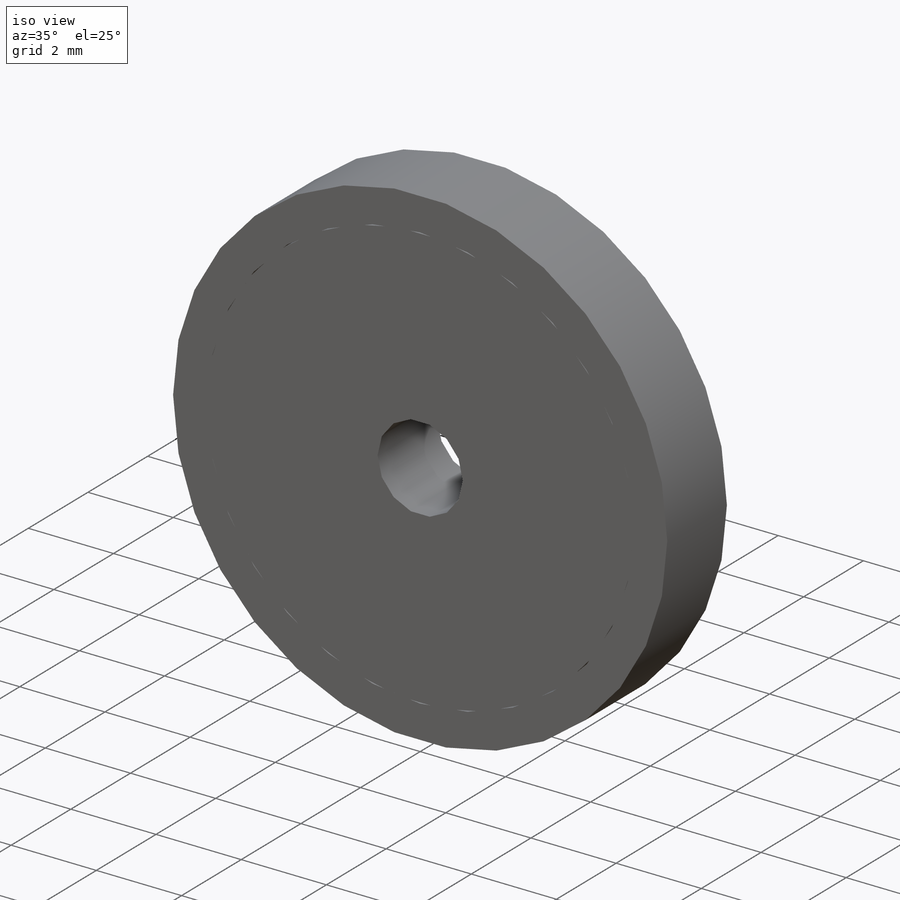
[diagram: iso view]
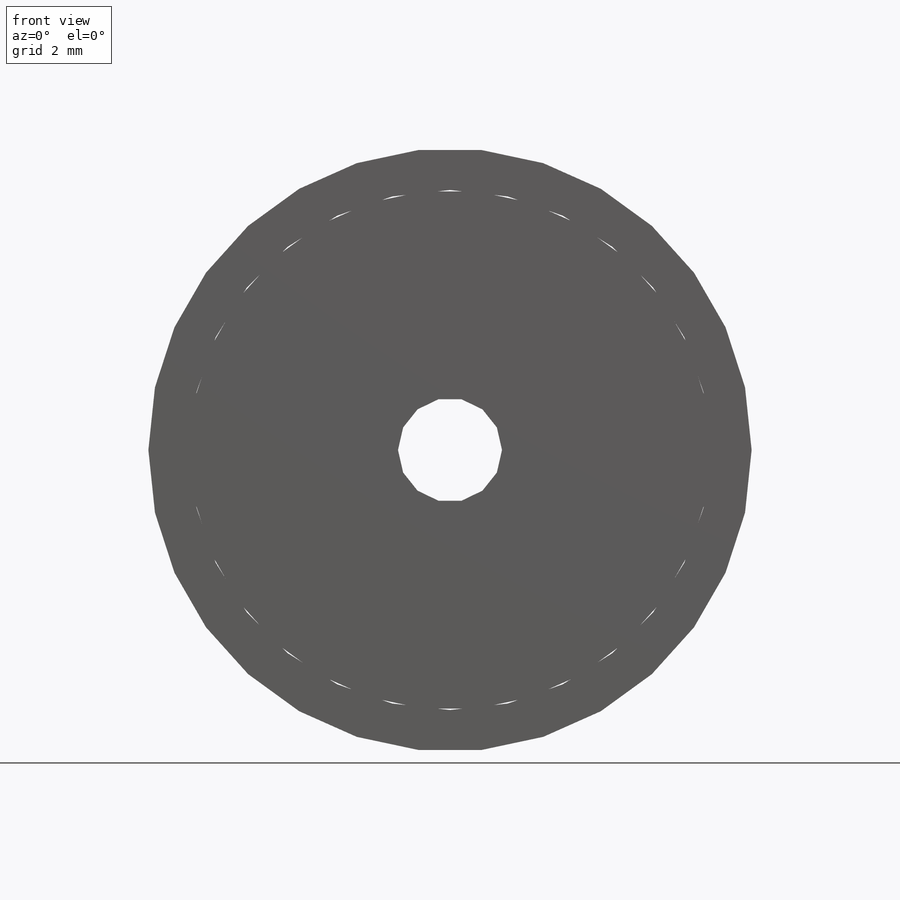
[diagram: front view]
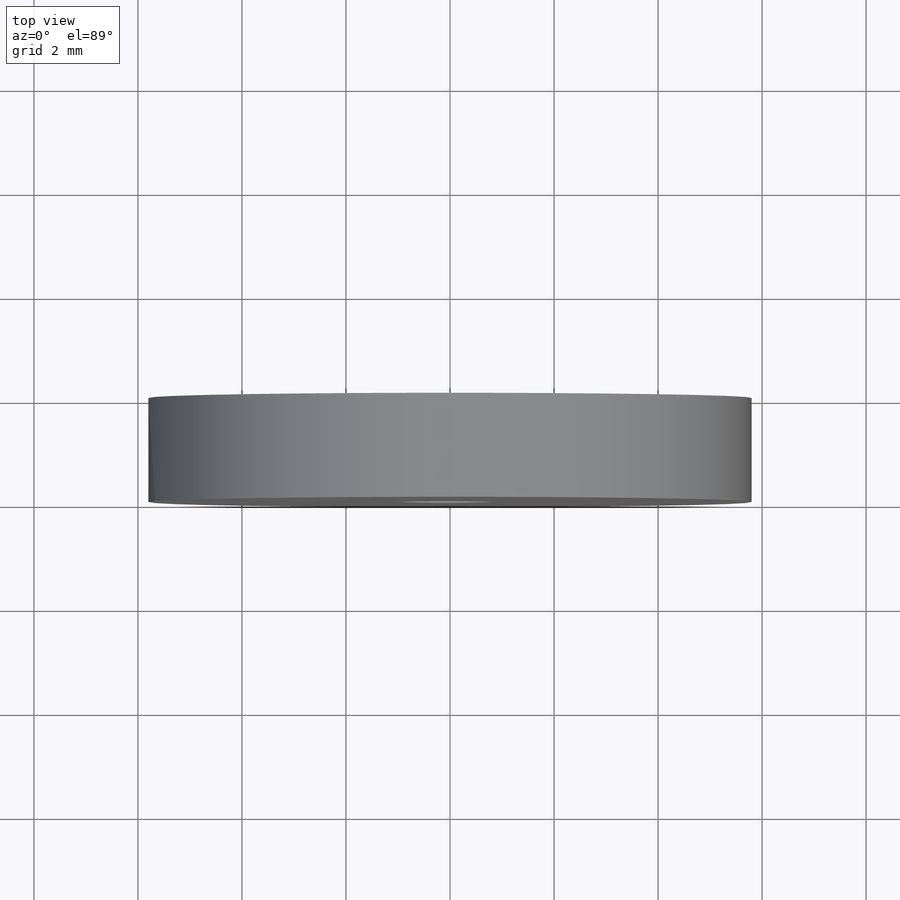
[diagram: top view]
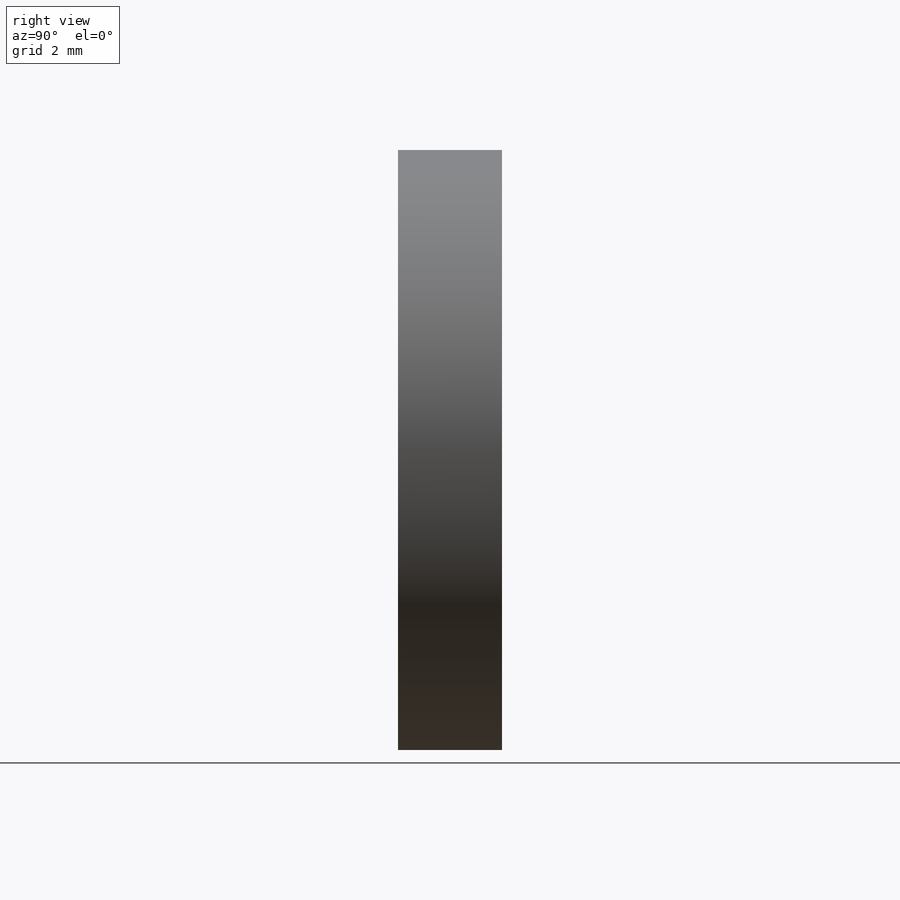
[diagram: right view]
SOLIDWORKS PART (.sldprt)
format: sldprt  version: not decoded by parser v0  size: 162,304 bytes
history: native  units: mm
features: sketch x3, extrude x2, material x1, cut_extrude x1 (+12 scaffold rows collapsed)
feature tree (19):
  scaffold x12  (default folders/planes/origin — collapsed)
  material  "Material <not specified>"
  sketch  "Sketch1"  dims[D1=10.0mm D2=0.8mm]
  extrude  "Boss-Extrude1"  Depth=2mm
  extrude  "Boss-Extrude2"  [1 undecoded]
  sketch  "Sketch1<2>"  dims[D1=2.0mm]
  sketch  "Sketch2"  dims[D1=2.0mm]
  cut_extrude  "Cut-Extrude1"  Depth=2mm
decode coverage: 5 of 6 modeling features carry decoded parameters
note: 1 parameter value undecoded
note: suppression state not decoded; provenance and decode notes live in map.json
